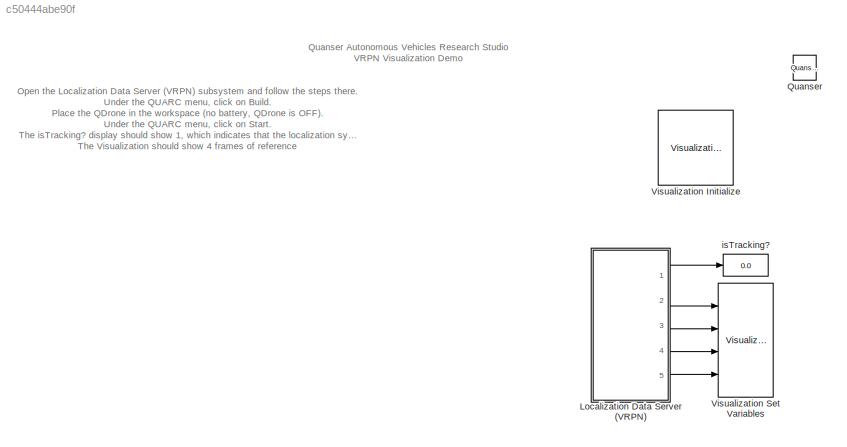
MODEL slx_c50444abe90f
KIND model
CONFIG AbsTol = auto
CONFIG EnableMultiTasking = on
CONFIG FixedStep = 0.001
CONFIG MaxStep = auto
CONFIG MinStep = auto
CONFIG RelTol = 1e-3
CONFIG SampleTimeConstraint = Unconstrained
CONFIG SolverName = FixedStepDiscrete
CONFIG StartTime = 0.0
CONFIG StopTime = inf
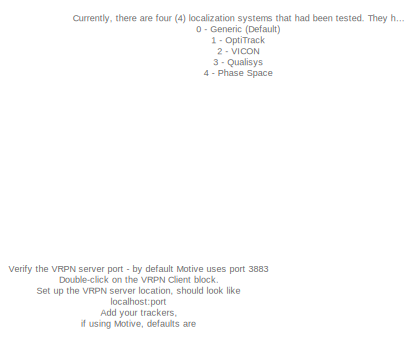
[diagram: Localization Data Server (VRPN)  - part 1/2, top left region]
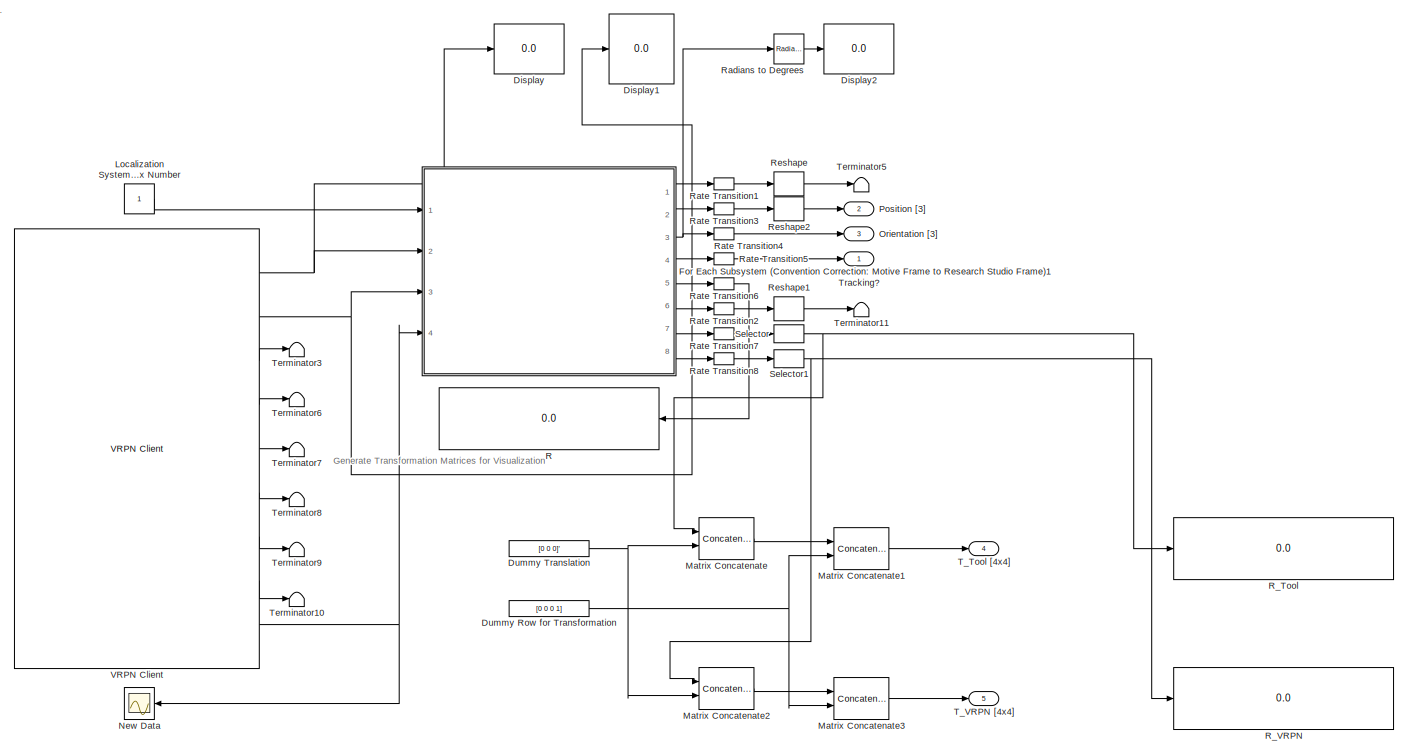
[diagram: Localization Data Server (VRPN)  - part 2/2, most of the canvas]
BLOCK [SubSystem] Localization Data Server (VRPN) 
  Ports = [0, 5]
  RequestExecContextInheritance = off
BLOCK [Display] Localization Data Server (VRPN) /Display
  Decimation = 1
  Ports = [1]
BLOCK [Display] Localization Data Server (VRPN) /Display1
  Decimation = 1
  Ports = [1]
BLOCK [Display] Localization Data Server (VRPN) /Display2
  Decimation = 1
  Ports = [1]
BLOCK [Constant] Localization Data Server (VRPN) /Dummy Row for Transformation
  Value = [0 0 0 1]
  VectorParams1D = off
BLOCK [Constant] Localization Data Server (VRPN) /Dummy Translation
  NameLocation = top
  Value = [0 0 0]'
  VectorParams1D = off
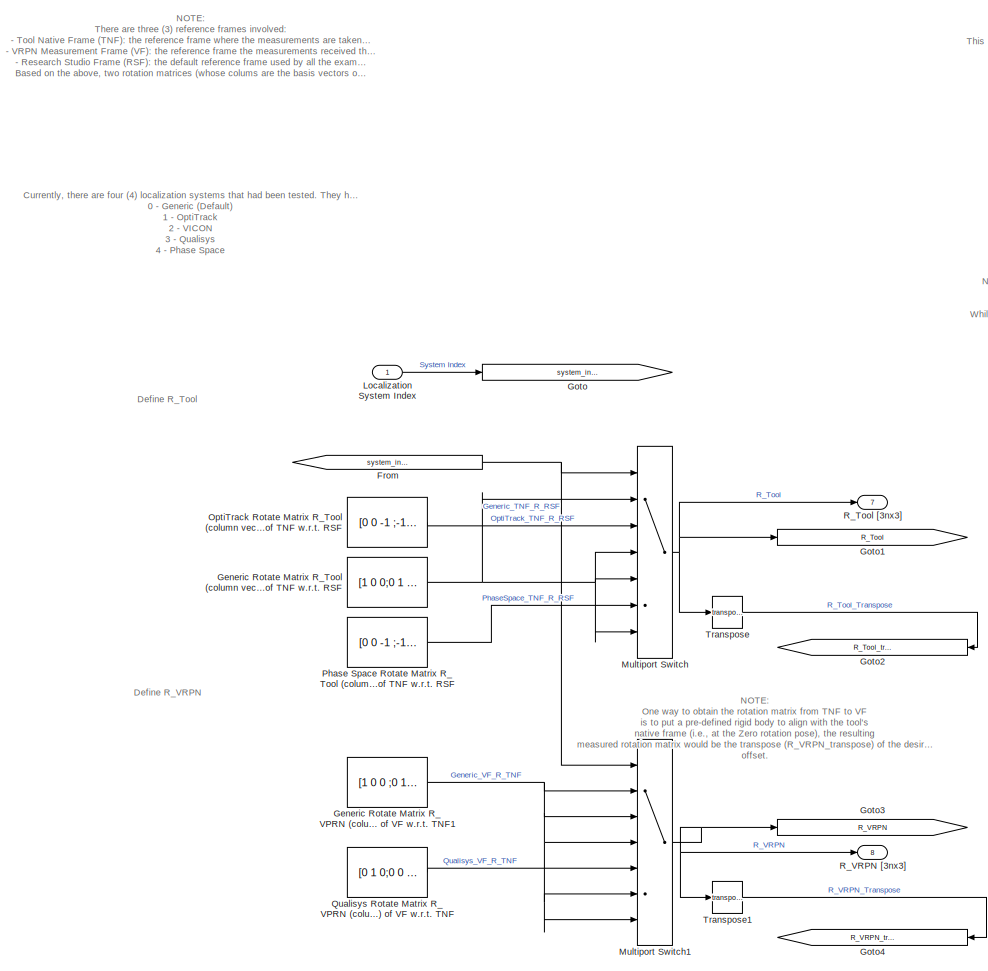
[diagram: Localization Data Server (VRPN) /For Each Subsystem (Convention Correction: Motive Frame to Research Studio Frame)1 - part 1/2, left side, full height]
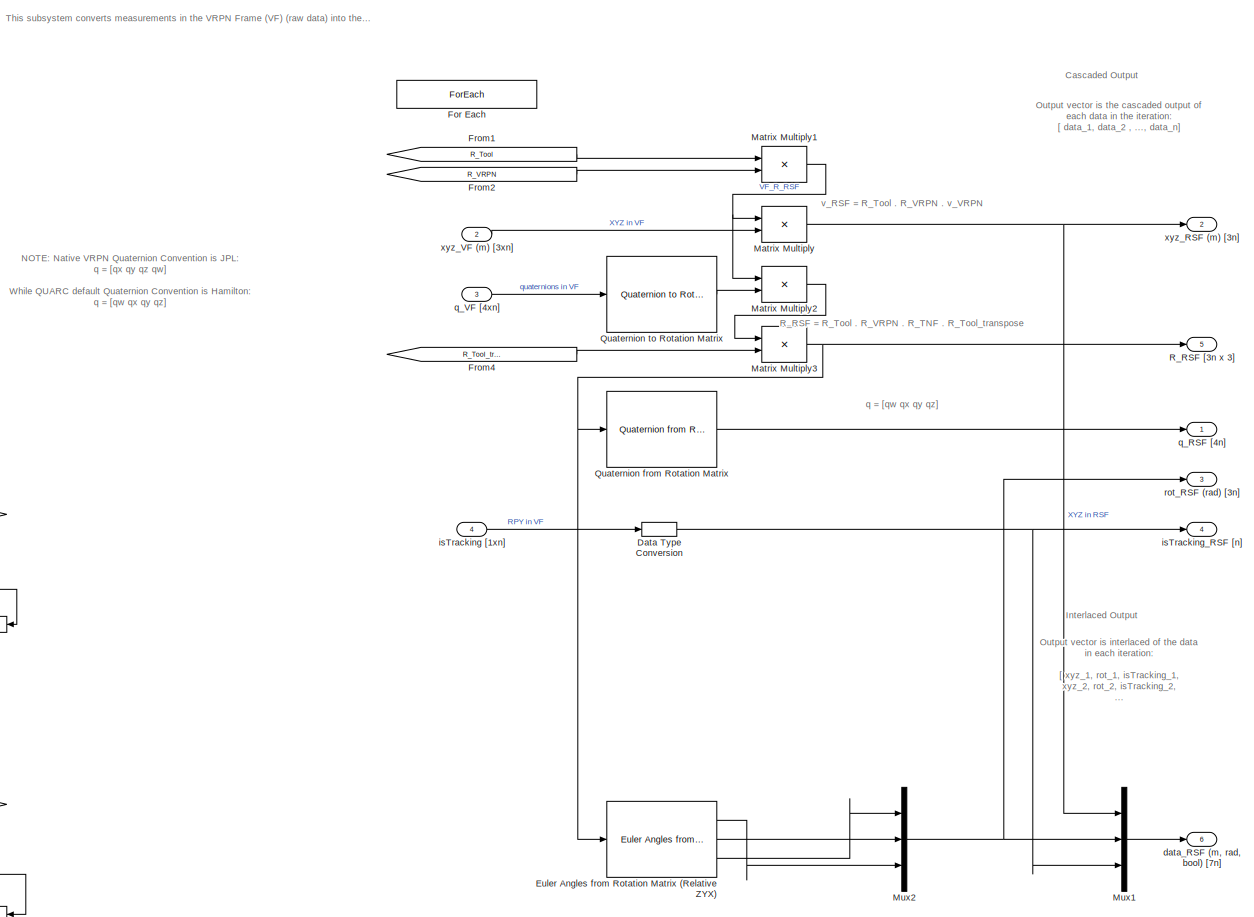
[diagram: Localization Data Server (VRPN) /For Each Subsystem (Convention Correction: Motive Frame to Research Studio Frame)1 - part 2/2, right side, full height]
BLOCK [SubSystem] Localization Data Server (VRPN) /For Each Subsystem (Convention Correction: Motive Frame to Research Studio Frame)1
  NameLocation = top
  Ports = [4, 8]
  RequestExecContextInheritance = off
  TreatAsAtomicUnit = on
BLOCK [Constant] Localization Data Server (VRPN) /For Each Subsystem (Convention Correction: Motive Frame to Research Studio Frame)1/ Generic Rotate Matrix R_VPRN (column vectors are basis vectors) of VF w.r.t. TNF1
  NameLocation = left
  Value = [1 0 0 ;0 1 0;0 0 1]
  VectorParams1D = off
BLOCK [Constant] Localization Data Server (VRPN) /For Each Subsystem (Convention Correction: Motive Frame to Research Studio Frame)1/ Qualisys Rotate Matrix R_VPRN (column vectors are basis vectors) of VF w.r.t. TNF
  NameLocation = left
  Value = [0 1 0;0 0 1;1 0 0]'
  VectorParams1D = off
BLOCK [DataTypeConversion] Localization Data Server (VRPN) /For Each Subsystem (Convention Correction: Motive Frame to Research Studio Frame)1/Data Type Conversion
  OutDataTypeStr = double
  RndMeth = Floor
  SaturateOnIntegerOverflow = off
BLOCK [Reference] Localization Data Server (VRPN) /For Each Subsystem (Convention Correction: Motive Frame to Research Studio Frame)1/Euler Angles from Rotation Matrix (Relative ZYX)  REF=quarc_library/Math Operations/Matrices/Euler Angles from
Rotation Matrix
  Ports = [1, 3]
  SourceBlock = quarc_library/Math Operations/Matrices/Euler Angles from\nRotation Matrix
  SourceProductName = QUARC Targets
  SourceType = Euler Angles from Rotation Matrix
BLOCK [ForEach] Localization Data Server (VRPN) /For Each Subsystem (Convention Correction: Motive Frame to Research Studio Frame)1/For Each
  DisableCoverage = on
  Ports = []
BLOCK [From] Localization Data Server (VRPN) /For Each Subsystem (Convention Correction: Motive Frame to Research Studio Frame)1/From
  GotoTag = system_index
BLOCK [From] Localization Data Server (VRPN) /For Each Subsystem (Convention Correction: Motive Frame to Research Studio Frame)1/From1
  GotoTag = R_Tool
BLOCK [From] Localization Data Server (VRPN) /For Each Subsystem (Convention Correction: Motive Frame to Research Studio Frame)1/From2
  GotoTag = R_VRPN
BLOCK [From] Localization Data Server (VRPN) /For Each Subsystem (Convention Correction: Motive Frame to Research Studio Frame)1/From4
  GotoTag = R_Tool_transpose
BLOCK [Constant] Localization Data Server (VRPN) /For Each Subsystem (Convention Correction: Motive Frame to Research Studio Frame)1/Generic Rotate Matrix R_Tool (column vectors are basis vectors) of TNF w.r.t. RSF
  NameLocation = left
  Value = [1 0 0;0 1 0 ;0 0 1]
  VectorParams1D = off
BLOCK [Goto] Localization Data Server (VRPN) /For Each Subsystem (Convention Correction: Motive Frame to Research Studio Frame)1/Goto
  GotoTag = system_index
BLOCK [Goto] Localization Data Server (VRPN) /For Each Subsystem (Convention Correction: Motive Frame to Research Studio Frame)1/Goto1
  GotoTag = R_Tool
BLOCK [Goto] Localization Data Server (VRPN) /For Each Subsystem (Convention Correction: Motive Frame to Research Studio Frame)1/Goto2
  GotoTag = R_Tool_transpose
BLOCK [Goto] Localization Data Server (VRPN) /For Each Subsystem (Convention Correction: Motive Frame to Research Studio Frame)1/Goto3
  GotoTag = R_VRPN
BLOCK [Goto] Localization Data Server (VRPN) /For Each Subsystem (Convention Correction: Motive Frame to Research Studio Frame)1/Goto4
  Commented = on
  GotoTag = R_VRPN_transpose
BLOCK [Inport] Localization Data Server (VRPN) /For Each Subsystem (Convention Correction: Motive Frame to Research Studio Frame)1/Localization System Index
  NameLocation = left
BLOCK [Product] Localization Data Server (VRPN) /For Each Subsystem (Convention Correction: Motive Frame to Research Studio Frame)1/Matrix Multiply
  Multiplication = Matrix(*)
  Ports = [2, 1]
BLOCK [Product] Localization Data Server (VRPN) /For Each Subsystem (Convention Correction: Motive Frame to Research Studio Frame)1/Matrix Multiply1
  Multiplication = Matrix(*)
  Ports = [2, 1]
BLOCK [Product] Localization Data Server (VRPN) /For Each Subsystem (Convention Correction: Motive Frame to Research Studio Frame)1/Matrix Multiply2
  Multiplication = Matrix(*)
  Ports = [2, 1]
BLOCK [Product] Localization Data Server (VRPN) /For Each Subsystem (Convention Correction: Motive Frame to Research Studio Frame)1/Matrix Multiply3
  Multiplication = Matrix(*)
  Ports = [2, 1]
BLOCK [MultiPortSwitch] Localization Data Server (VRPN) /For Each Subsystem (Convention Correction: Motive Frame to Research Studio Frame)1/Multiport Switch
  DataPortForDefault = Additional data port
  DataPortOrder = Zero-based contiguous
  DiagnosticForDefault = None
  InputSameDT = off
  Inputs = 5
  Ports = [7, 1]
  SaturateOnIntegerOverflow = off
  zeroidx = on
BLOCK [MultiPortSwitch] Localization Data Server (VRPN) /For Each Subsystem (Convention Correction: Motive Frame to Research Studio Frame)1/Multiport Switch1
  DataPortForDefault = Additional data port
  DataPortOrder = Zero-based contiguous
  DiagnosticForDefault = None
  InputSameDT = off
  Inputs = 5
  Ports = [7, 1]
  SaturateOnIntegerOverflow = off
  zeroidx = on
BLOCK [Mux] Localization Data Server (VRPN) /For Each Subsystem (Convention Correction: Motive Frame to Research Studio Frame)1/Mux1
  DisplayOption = bar
  Inputs = 3
  Ports = [3, 1]
BLOCK [Mux] Localization Data Server (VRPN) /For Each Subsystem (Convention Correction: Motive Frame to Research Studio Frame)1/Mux2
  DisplayOption = bar
  Inputs = 3
  Ports = [3, 1]
BLOCK [Constant] Localization Data Server (VRPN) /For Each Subsystem (Convention Correction: Motive Frame to Research Studio Frame)1/OptiTrack Rotate Matrix R_Tool (column vectors are basis vectors) of TNF w.r.t. RSF
  NameLocation = left
  Value = [0 0 -1 ;-1 0 0 ;0 1 0 ]
  VectorParams1D = off
BLOCK [Constant] Localization Data Server (VRPN) /For Each Subsystem (Convention Correction: Motive Frame to Research Studio Frame)1/Phase Space Rotate Matrix R_Tool (column vectors are basis vectors) of TNF w.r.t. RSF
  NameLocation = left
  Value = [0 0 -1 ;-1 0 0 ;0 1 0 ]
  VectorParams1D = off
BLOCK [Reference] Localization Data Server (VRPN) /For Each Subsystem (Convention Correction: Motive Frame to Research Studio Frame)1/Quaternion from Rotation Matrix  REF=quarc_library/Math Operations/Quaternions/Quaternion
from Rotation Matrix
  Ports = [1, 1]
  SourceBlock = quarc_library/Math Operations/Quaternions/Quaternion\nfrom Rotation Matrix
  SourceProductName = QUARC Targets
  SourceType = Quaternion from Rotation Matrix
BLOCK [Reference] Localization Data Server (VRPN) /For Each Subsystem (Convention Correction: Motive Frame to Research Studio Frame)1/Quaternion to Rotation Matrix  REF=quarc_library/Math Operations/Quaternions/Quaternion
to Rotation Matrix
  Ports = [1, 1]
  SourceBlock = quarc_library/Math Operations/Quaternions/Quaternion\nto Rotation Matrix
  SourceProductName = QUARC Targets
  SourceType = Quaternion to Rotation Matrix
BLOCK [Outport] Localization Data Server (VRPN) /For Each Subsystem (Convention Correction: Motive Frame to Research Studio Frame)1/R_RSF [3n x 3]
  ConcatenationDimension = 1
  NameLocation = right
  Port = 5
BLOCK [Outport] Localization Data Server (VRPN) /For Each Subsystem (Convention Correction: Motive Frame to Research Studio Frame)1/R_Tool [3nx3]
  ConcatenationDimension = 1
  NameLocation = right
  Port = 7
BLOCK [Outport] Localization Data Server (VRPN) /For Each Subsystem (Convention Correction: Motive Frame to Research Studio Frame)1/R_VRPN [3nx3]
  ConcatenationDimension = 1
  NameLocation = right
  Port = 8
BLOCK [Math] Localization Data Server (VRPN) /For Each Subsystem (Convention Correction: Motive Frame to Research Studio Frame)1/Transpose
  Operator = transpose
  Ports = [1, 1]
BLOCK [Math] Localization Data Server (VRPN) /For Each Subsystem (Convention Correction: Motive Frame to Research Studio Frame)1/Transpose1
  Operator = transpose
  Ports = [1, 1]
BLOCK [Outport] Localization Data Server (VRPN) /For Each Subsystem (Convention Correction: Motive Frame to Research Studio Frame)1/data_RSF (m, rad, bool) [7n]
  ConcatenationDimension = 1
  NameLocation = right
  Port = 6
BLOCK [Inport] Localization Data Server (VRPN) /For Each Subsystem (Convention Correction: Motive Frame to Research Studio Frame)1/isTracking [1xn]
  NameLocation = left
  Partition = on
  PartitionDimension = 2
  PartitionOffset = 0
  PartitionWidth = 1
  Port = 4
BLOCK [Outport] Localization Data Server (VRPN) /For Each Subsystem (Convention Correction: Motive Frame to Research Studio Frame)1/isTracking_RSF [n]
  ConcatenationDimension = 1
  NameLocation = right
  Port = 4
BLOCK [Outport] Localization Data Server (VRPN) /For Each Subsystem (Convention Correction: Motive Frame to Research Studio Frame)1/q_RSF [4n]
  ConcatenationDimension = 1
  NameLocation = right
BLOCK [Inport] Localization Data Server (VRPN) /For Each Subsystem (Convention Correction: Motive Frame to Research Studio Frame)1/q_VF [4xn]
  NameLocation = left
  Partition = on
  PartitionDimension = 2
  PartitionOffset = 0
  PartitionWidth = 1
  Port = 3
BLOCK [Outport] Localization Data Server (VRPN) /For Each Subsystem (Convention Correction: Motive Frame to Research Studio Frame)1/rot_RSF (rad) [3n]
  ConcatenationDimension = 1
  NameLocation = right
  Port = 3
BLOCK [Outport] Localization Data Server (VRPN) /For Each Subsystem (Convention Correction: Motive Frame to Research Studio Frame)1/xyz_RSF (m) [3n]
  ConcatenationDimension = 1
  NameLocation = right
  Port = 2
BLOCK [Inport] Localization Data Server (VRPN) /For Each Subsystem (Convention Correction: Motive Frame to Research Studio Frame)1/xyz_VF (m) [3xn]
  NameLocation = left
  Partition = on
  PartitionDimension = 2
  PartitionOffset = 0
  PartitionWidth = 1
  Port = 2
BLOCK [Constant] Localization Data Server (VRPN) /Localization System Index Number
  NameLocation = left
BLOCK [Concatenate] Localization Data Server (VRPN) /Matrix Concatenate
  ConcatenateDimension = 2
  Mode = Multidimensional array
  Ports = [2, 1]
BLOCK [Concatenate] Localization Data Server (VRPN) /Matrix Concatenate1
  Mode = Multidimensional array
  Ports = [2, 1]
BLOCK [Concatenate] Localization Data Server (VRPN) /Matrix Concatenate2
  ConcatenateDimension = 2
  Mode = Multidimensional array
  Ports = [2, 1]
BLOCK [Concatenate] Localization Data Server (VRPN) /Matrix Concatenate3
  Mode = Multidimensional array
  Ports = [2, 1]
BLOCK [Scope] Localization Data Server (VRPN) /New Data
  Floating = off
  NumInputPorts = 1
  Ports = [1]
  ScopeSpecificationString = Simulink.scopes.TimeScopeBlockCfg('CurrentConfiguration', extmgr.ConfigurationSet(extmgr.Configuration('Core','General UI',true),extmgr.Configuration('Core','Source UI',true),extmgr.Configuration('Sources','WiredSimulink',true),extmgr.Configuration('Visuals','Time Domain',true),extmgr.Configuration('Tools','Plot Navigation',true),extmgr.Configuration('Tools','Measurements',true)),'Version','2023a'...<+1ch>
BLOCK [Outport] Localization Data Server (VRPN) /Orientation [3]
  NameLocation = right
  Port = 3
  VectorParamsAs1DForOutWhenUnconnected = off
BLOCK [Outport] Localization Data Server (VRPN) /Position [3]
  NameLocation = right
  Port = 2
  VectorParamsAs1DForOutWhenUnconnected = off
BLOCK [Display] Localization Data Server (VRPN) /R
  Decimation = 1
  NameLocation = left
  Ports = [1]
BLOCK [Display] Localization Data Server (VRPN) /R_Tool
  Decimation = 1
  Ports = [1]
BLOCK [Display] Localization Data Server (VRPN) /R_VRPN
  Decimation = 1
  Ports = [1]
BLOCK [Reference] Localization Data Server (VRPN) /Radians to Degrees  REF=simulink_extras/Transformations/Radians
to Degrees
  Ports = [1, 1]
  SourceBlock = simulink_extras/Transformations/Radians\nto Degrees
  SourceProductBaseCode = SL
  SourceType = RadiansToDegrees
BLOCK [RateTransition] Localization Data Server (VRPN) /Rate Transition1
BLOCK [RateTransition] Localization Data Server (VRPN) /Rate Transition2
BLOCK [RateTransition] Localization Data Server (VRPN) /Rate Transition3
BLOCK [RateTransition] Localization Data Server (VRPN) /Rate Transition4
BLOCK [RateTransition] Localization Data Server (VRPN) /Rate Transition5
BLOCK [RateTransition] Localization Data Server (VRPN) /Rate Transition6
BLOCK [RateTransition] Localization Data Server (VRPN) /Rate Transition7
BLOCK [RateTransition] Localization Data Server (VRPN) /Rate Transition8
BLOCK [Reshape] Localization Data Server (VRPN) /Reshape
  Ports = [1, 1]
BLOCK [Reshape] Localization Data Server (VRPN) /Reshape1
  Ports = [1, 1]
BLOCK [Reshape] Localization Data Server (VRPN) /Reshape2
  Ports = [1, 1]
BLOCK [Selector] Localization Data Server (VRPN) /Selector
  IndexOptions = Index vector (dialog),Index vector (dialog)
  Indices = [1:3],[1:3]
  InputPortWidth = 3
  NumberOfDimensions = 2
  OutputSizes = 1,1
  Ports = [1, 1]
BLOCK [Selector] Localization Data Server (VRPN) /Selector1
  IndexOptions = Index vector (dialog),Index vector (dialog)
  Indices = [1:3],[1:3]
  InputPortWidth = 3
  NumberOfDimensions = 2
  OutputSizes = 1,1
  Ports = [1, 1]
BLOCK [Outport] Localization Data Server (VRPN) /T_Tool [4x4]
  NameLocation = right
  Port = 4
  VectorParamsAs1DForOutWhenUnconnected = off
BLOCK [Outport] Localization Data Server (VRPN) /T_VRPN [4x4]
  NameLocation = right
  Port = 5
  VectorParamsAs1DForOutWhenUnconnected = off
BLOCK [Terminator] Localization Data Server (VRPN) /Terminator10
BLOCK [Terminator] Localization Data Server (VRPN) /Terminator11
BLOCK [Terminator] Localization Data Server (VRPN) /Terminator3
BLOCK [Terminator] Localization Data Server (VRPN) /Terminator5
BLOCK [Terminator] Localization Data Server (VRPN) /Terminator6
BLOCK [Terminator] Localization Data Server (VRPN) /Terminator7
BLOCK [Terminator] Localization Data Server (VRPN) /Terminator8
BLOCK [Terminator] Localization Data Server (VRPN) /Terminator9
BLOCK [Outport] Localization Data Server (VRPN) /Tracking?
  NameLocation = right
  VectorParamsAs1DForOutWhenUnconnected = off
BLOCK [Reference] Localization Data Server (VRPN) /VRPN Client  REF=quarc_library/Devices/Third-Party/VRPN/VRPN Client
  Ports = [0, 9]
  SourceBlock = quarc_library/Devices/Third-Party/VRPN/VRPN Client
  SourceProductName = QUARC Targets
  SourceType = VRPN Client
BLOCK [Reference] Quanser  REF=quarc_library/Logos/Quanser
  Ports = []
  SourceBlock = quarc_library/Logos/Quanser
  SourceProductName = QUARC Targets
  SourceType = Powered by Quanser
BLOCK [Reference] Visualization Initialize  REF=quarc_library/User Interface/Visualization/Visualization Initialize
  AttributesFormatString = %<object_name>
  Ports = []
  SourceBlock = quarc_library/User Interface/Visualization/Visualization Initialize
  SourceProductName = QUARC Targets
  SourceType = Visualization Initialize
BLOCK [Reference] Visualization Set Variables  REF=quarc_library/User Interface/Visualization/Visualization Set Variables
  AttributesFormatString = (%<object_name>)
  Ports = [4]
  SourceBlock = quarc_library/User Interface/Visualization/Visualization Set Variables
  SourceProductName = QUARC Targets
  SourceType = Visualization Set Variables
BLOCK [Display] isTracking?
  Decimation = 1
  NameLocation = top
  Ports = [1]
ANNOTATION (root): Open the Localization Data Server (VRPN) subsystem and follow the steps there. Under the QUARC menu, click on Build. Place the QDrone in the workspace (no battery, QDrone is OFF). Under the QUARC menu, click on Start . The isTracking? display should show 1, which indicates that the localization system is tracking the vehicle's pose. The Visualization should show 4 frames of reference a. BLACK - It...<+1675ch>
ANNOTATION (root): Quanser Autonomous Vehicles Research Studio VRPN Visualization Demo
ANNOTATION Localization Data Server (VRPN) : Verify the VRPN server port - by default Motive uses port 3883 Double-click on the VRPN Client block. Set up the VRPN server location, should look like localhost:port Add your trackers, if using Motive, defaults are Tracker Device: RigidBody Number of sensors: 1 Sensors to read: 0 Leave the rest of the setting as is.
ANNOTATION Localization Data Server (VRPN) : Currently, there are four (4) localization systems that had been tested. They have been assigned an index number for selection (together with a generic/default system that has no transformation required, i.e., measurements frame aligned with RSF): 0 - Generic (Default) 1 - OptiTrack 2 - VICON 3 - Qualisys 4 - Phase Space Follow the procedured described in this model to add support for additional s...<+56ch>
ANNOTATION Localization Data Server (VRPN) : Generate Transformation Matrices for Visualization
ANNOTATION Localization Data Server (VRPN) /For Each Subsystem (Convention Correction: Motive Frame to Research Studio Frame)1: Currently, there are four (4) localization systems that had been tested. They have been assigned an index number for selection (together with a generic/default system that has no transformation required, i.e., measurements frame aligned with RSF): 0 - Generic (Default) 1 - OptiTrack 2 - VICON 3 - Qualisys 4 - Phase Space Follow the procedured described in this model to add support for additional s...<+56ch>
ANNOTATION Localization Data Server (VRPN) /For Each Subsystem (Convention Correction: Motive Frame to Research Studio Frame)1: NOTE: There are three (3) reference frames involved: - Tool Native Frame (TNF) : the reference frame where the measurements are taken with respect to within the localization tool - VRPN Measurement Frame (VF) : the reference frame the measurements received through the VRPN protocol are taken with respect to - Research Studio Frame (RSF) : the default reference frame used by all the example models ...<+405ch>
ANNOTATION Localization Data Server (VRPN) /For Each Subsystem (Convention Correction: Motive Frame to Research Studio Frame)1: This subsystem converts measurements in the VRPN Frame (VF) (raw data) into the Research Studio Frame (RSF).
ANNOTATION Localization Data Server (VRPN) /For Each Subsystem (Convention Correction: Motive Frame to Research Studio Frame)1: Cascaded Output
ANNOTATION Localization Data Server (VRPN) /For Each Subsystem (Convention Correction: Motive Frame to Research Studio Frame)1: Define R_Tool
ANNOTATION Localization Data Server (VRPN) /For Each Subsystem (Convention Correction: Motive Frame to Research Studio Frame)1: Define R_VRPN
ANNOTATION Localization Data Server (VRPN) /For Each Subsystem (Convention Correction: Motive Frame to Research Studio Frame)1: Interlaced Output
ANNOTATION Localization Data Server (VRPN) /For Each Subsystem (Convention Correction: Motive Frame to Research Studio Frame)1: NOTE: One way to obtain the rotation matrix from TNF to VF is to put a pre-defined rigid body to align with the tool's native frame (i.e., at the Zero rotation pose), the resulting measured rotation matrix would be the transpose (R_VRPN_transpose) of the desired rotation offset.
ANNOTATION Localization Data Server (VRPN) /For Each Subsystem (Convention Correction: Motive Frame to Research Studio Frame)1: NOTE: Native VRPN Quaternion Convention is JPL: q = [qx qy qz qw] While QUARC default Quaternion Convention is Hamilton: q = [qw qx qy qz]
ANNOTATION Localization Data Server (VRPN) /For Each Subsystem (Convention Correction: Motive Frame to Research Studio Frame)1: Output vector is interlaced of the data in each iteration: [ xyz_1, rot_1, isTracking_1, xyz_2, rot_2, isTracking_2, ... xyz_n, rot_n, isTracking_n ]
ANNOTATION Localization Data Server (VRPN) /For Each Subsystem (Convention Correction: Motive Frame to Research Studio Frame)1: Output vector is the cascaded output of each data in the iteration: [ data_1, data_2 , ..., data_n]
ANNOTATION Localization Data Server (VRPN) /For Each Subsystem (Convention Correction: Motive Frame to Research Studio Frame)1: R_RSF = R_Tool . R_VRPN . R_TNF . R_Tool_transpose
ANNOTATION Localization Data Server (VRPN) /For Each Subsystem (Convention Correction: Motive Frame to Research Studio Frame)1: q = [qw qx qy qz]
ANNOTATION Localization Data Server (VRPN) /For Each Subsystem (Convention Correction: Motive Frame to Research Studio Frame)1: v_RSF = R_Tool . R_VRPN . v_VRPN
NET Localization Data Server (VRPN) /Dummy Row for Transformation:1 -> Localization Data Server (VRPN) /Matrix Concatenate1:2, Localization Data Server (VRPN) /Matrix Concatenate3:2
NET Localization Data Server (VRPN) /Dummy Translation:1 -> Localization Data Server (VRPN) /Matrix Concatenate2:2, Localization Data Server (VRPN) /Matrix Concatenate:2
NET Localization Data Server (VRPN) /For Each Subsystem (Convention Correction: Motive Frame to Research Studio Frame)1/ Generic Rotate Matrix R_VPRN (column vectors are basis vectors) of VF w.r.t. TNF1:1 -> Localization Data Server (VRPN) /For Each Subsystem (Convention Correction: Motive Frame to Research Studio Frame)1/Multiport Switch1:2, Localization Data Server (VRPN) /For Each Subsystem (Convention Correction: Motive Frame to Research Studio Frame)1/Multiport Switch1:3, Localization Data Server (VRPN) /For Each Subsystem (Convention Correction: Motive Frame to Research Studio Frame)1/Multiport Switch1:4, Localization Data Server (VRPN) /For Each Subsystem (Convention Correction: Motive Frame to Research Studio Frame)1/Multiport Switch1:6, Localization Data Server (VRPN) /For Each Subsystem (Convention Correction: Motive Frame to Research Studio Frame)1/Multiport Switch1:7
LINE Localization Data Server (VRPN) /For Each Subsystem (Convention Correction: Motive Frame to Research Studio Frame)1/ Qualisys Rotate Matrix R_VPRN (column vectors are basis vectors) of VF w.r.t. TNF:1 -> Localization Data Server (VRPN) /For Each Subsystem (Convention Correction: Motive Frame to Research Studio Frame)1/Multiport Switch1:5
NET Localization Data Server (VRPN) /For Each Subsystem (Convention Correction: Motive Frame to Research Studio Frame)1/Data Type Conversion:1 -> Localization Data Server (VRPN) /For Each Subsystem (Convention Correction: Motive Frame to Research Studio Frame)1/Mux1:3, Localization Data Server (VRPN) /For Each Subsystem (Convention Correction: Motive Frame to Research Studio Frame)1/isTracking_RSF [n]:1
LINE Localization Data Server (VRPN) /For Each Subsystem (Convention Correction: Motive Frame to Research Studio Frame)1/Euler Angles from Rotation Matrix (Relative ZYX):1 -> Localization Data Server (VRPN) /For Each Subsystem (Convention Correction: Motive Frame to Research Studio Frame)1/Mux2:3
LINE Localization Data Server (VRPN) /For Each Subsystem (Convention Correction: Motive Frame to Research Studio Frame)1/Euler Angles from Rotation Matrix (Relative ZYX):2 -> Localization Data Server (VRPN) /For Each Subsystem (Convention Correction: Motive Frame to Research Studio Frame)1/Mux2:2
LINE Localization Data Server (VRPN) /For Each Subsystem (Convention Correction: Motive Frame to Research Studio Frame)1/Euler Angles from Rotation Matrix (Relative ZYX):3 -> Localization Data Server (VRPN) /For Each Subsystem (Convention Correction: Motive Frame to Research Studio Frame)1/Mux2:1
LINE Localization Data Server (VRPN) /For Each Subsystem (Convention Correction: Motive Frame to Research Studio Frame)1/From1:1 -> Localization Data Server (VRPN) /For Each Subsystem (Convention Correction: Motive Frame to Research Studio Frame)1/Matrix Multiply1:1
LINE Localization Data Server (VRPN) /For Each Subsystem (Convention Correction: Motive Frame to Research Studio Frame)1/From2:1 -> Localization Data Server (VRPN) /For Each Subsystem (Convention Correction: Motive Frame to Research Studio Frame)1/Matrix Multiply1:2
LINE Localization Data Server (VRPN) /For Each Subsystem (Convention Correction: Motive Frame to Research Studio Frame)1/From4:1 -> Localization Data Server (VRPN) /For Each Subsystem (Convention Correction: Motive Frame to Research Studio Frame)1/Matrix Multiply3:2
NET Localization Data Server (VRPN) /For Each Subsystem (Convention Correction: Motive Frame to Research Studio Frame)1/From:1 -> Localization Data Server (VRPN) /For Each Subsystem (Convention Correction: Motive Frame to Research Studio Frame)1/Multiport Switch1:1, Localization Data Server (VRPN) /For Each Subsystem (Convention Correction: Motive Frame to Research Studio Frame)1/Multiport Switch:1
NET Localization Data Server (VRPN) /For Each Subsystem (Convention Correction: Motive Frame to Research Studio Frame)1/Generic Rotate Matrix R_Tool (column vectors are basis vectors) of TNF w.r.t. RSF:1 -> Localization Data Server (VRPN) /For Each Subsystem (Convention Correction: Motive Frame to Research Studio Frame)1/Multiport Switch:2, Localization Data Server (VRPN) /For Each Subsystem (Convention Correction: Motive Frame to Research Studio Frame)1/Multiport Switch:4, Localization Data Server (VRPN) /For Each Subsystem (Convention Correction: Motive Frame to Research Studio Frame)1/Multiport Switch:5, Localization Data Server (VRPN) /For Each Subsystem (Convention Correction: Motive Frame to Research Studio Frame)1/Multiport Switch:7
LINE Localization Data Server (VRPN) /For Each Subsystem (Convention Correction: Motive Frame to Research Studio Frame)1/Localization System Index:1 -> Localization Data Server (VRPN) /For Each Subsystem (Convention Correction: Motive Frame to Research Studio Frame)1/Goto:1
NET Localization Data Server (VRPN) /For Each Subsystem (Convention Correction: Motive Frame to Research Studio Frame)1/Matrix Multiply1:1 -> Localization Data Server (VRPN) /For Each Subsystem (Convention Correction: Motive Frame to Research Studio Frame)1/Matrix Multiply2:1, Localization Data Server (VRPN) /For Each Subsystem (Convention Correction: Motive Frame to Research Studio Frame)1/Matrix Multiply:1
LINE Localization Data Server (VRPN) /For Each Subsystem (Convention Correction: Motive Frame to Research Studio Frame)1/Matrix Multiply2:1 -> Localization Data Server (VRPN) /For Each Subsystem (Convention Correction: Motive Frame to Research Studio Frame)1/Matrix Multiply3:1
NET Localization Data Server (VRPN) /For Each Subsystem (Convention Correction: Motive Frame to Research Studio Frame)1/Matrix Multiply3:1 -> Localization Data Server (VRPN) /For Each Subsystem (Convention Correction: Motive Frame to Research Studio Frame)1/Euler Angles from Rotation Matrix (Relative ZYX):1, Localization Data Server (VRPN) /For Each Subsystem (Convention Correction: Motive Frame to Research Studio Frame)1/Quaternion from Rotation Matrix:1, Localization Data Server (VRPN) /For Each Subsystem (Convention Correction: Motive Frame to Research Studio Frame)1/R_RSF [3n x 3]:1
NET Localization Data Server (VRPN) /For Each Subsystem (Convention Correction: Motive Frame to Research Studio Frame)1/Matrix Multiply:1 -> Localization Data Server (VRPN) /For Each Subsystem (Convention Correction: Motive Frame to Research Studio Frame)1/Mux1:1, Localization Data Server (VRPN) /For Each Subsystem (Convention Correction: Motive Frame to Research Studio Frame)1/xyz_RSF (m) [3n]:1
NET Localization Data Server (VRPN) /For Each Subsystem (Convention Correction: Motive Frame to Research Studio Frame)1/Multiport Switch1:1 -> Localization Data Server (VRPN) /For Each Subsystem (Convention Correction: Motive Frame to Research Studio Frame)1/Goto3:1, Localization Data Server (VRPN) /For Each Subsystem (Convention Correction: Motive Frame to Research Studio Frame)1/R_VRPN [3nx3]:1, Localization Data Server (VRPN) /For Each Subsystem (Convention Correction: Motive Frame to Research Studio Frame)1/Transpose1:1
NET Localization Data Server (VRPN) /For Each Subsystem (Convention Correction: Motive Frame to Research Studio Frame)1/Multiport Switch:1 -> Localization Data Server (VRPN) /For Each Subsystem (Convention Correction: Motive Frame to Research Studio Frame)1/Goto1:1, Localization Data Server (VRPN) /For Each Subsystem (Convention Correction: Motive Frame to Research Studio Frame)1/R_Tool [3nx3]:1, Localization Data Server (VRPN) /For Each Subsystem (Convention Correction: Motive Frame to Research Studio Frame)1/Transpose:1
LINE Localization Data Server (VRPN) /For Each Subsystem (Convention Correction: Motive Frame to Research Studio Frame)1/Mux1:1 -> Localization Data Server (VRPN) /For Each Subsystem (Convention Correction: Motive Frame to Research Studio Frame)1/data_RSF (m, rad, bool) [7n]:1
NET Localization Data Server (VRPN) /For Each Subsystem (Convention Correction: Motive Frame to Research Studio Frame)1/Mux2:1 -> Localization Data Server (VRPN) /For Each Subsystem (Convention Correction: Motive Frame to Research Studio Frame)1/Mux1:2, Localization Data Server (VRPN) /For Each Subsystem (Convention Correction: Motive Frame to Research Studio Frame)1/rot_RSF (rad) [3n]:1
LINE Localization Data Server (VRPN) /For Each Subsystem (Convention Correction: Motive Frame to Research Studio Frame)1/OptiTrack Rotate Matrix R_Tool (column vectors are basis vectors) of TNF w.r.t. RSF:1 -> Localization Data Server (VRPN) /For Each Subsystem (Convention Correction: Motive Frame to Research Studio Frame)1/Multiport Switch:3
LINE Localization Data Server (VRPN) /For Each Subsystem (Convention Correction: Motive Frame to Research Studio Frame)1/Phase Space Rotate Matrix R_Tool (column vectors are basis vectors) of TNF w.r.t. RSF:1 -> Localization Data Server (VRPN) /For Each Subsystem (Convention Correction: Motive Frame to Research Studio Frame)1/Multiport Switch:6
LINE Localization Data Server (VRPN) /For Each Subsystem (Convention Correction: Motive Frame to Research Studio Frame)1/Quaternion from Rotation Matrix:1 -> Localization Data Server (VRPN) /For Each Subsystem (Convention Correction: Motive Frame to Research Studio Frame)1/q_RSF [4n]:1
LINE Localization Data Server (VRPN) /For Each Subsystem (Convention Correction: Motive Frame to Research Studio Frame)1/Quaternion to Rotation Matrix:1 -> Localization Data Server (VRPN) /For Each Subsystem (Convention Correction: Motive Frame to Research Studio Frame)1/Matrix Multiply2:2
LINE Localization Data Server (VRPN) /For Each Subsystem (Convention Correction: Motive Frame to Research Studio Frame)1/Transpose1:1 -> Localization Data Server (VRPN) /For Each Subsystem (Convention Correction: Motive Frame to Research Studio Frame)1/Goto4:1
LINE Localization Data Server (VRPN) /For Each Subsystem (Convention Correction: Motive Frame to Research Studio Frame)1/Transpose:1 -> Localization Data Server (VRPN) /For Each Subsystem (Convention Correction: Motive Frame to Research Studio Frame)1/Goto2:1
LINE Localization Data Server (VRPN) /For Each Subsystem (Convention Correction: Motive Frame to Research Studio Frame)1/isTracking [1xn]:1 -> Localization Data Server (VRPN) /For Each Subsystem (Convention Correction: Motive Frame to Research Studio Frame)1/Data Type Conversion:1
LINE Localization Data Server (VRPN) /For Each Subsystem (Convention Correction: Motive Frame to Research Studio Frame)1/q_VF [4xn]:1 -> Localization Data Server (VRPN) /For Each Subsystem (Convention Correction: Motive Frame to Research Studio Frame)1/Quaternion to Rotation Matrix:1
LINE Localization Data Server (VRPN) /For Each Subsystem (Convention Correction: Motive Frame to Research Studio Frame)1/xyz_VF (m) [3xn]:1 -> Localization Data Server (VRPN) /For Each Subsystem (Convention Correction: Motive Frame to Research Studio Frame)1/Matrix Multiply:2
LINE Localization Data Server (VRPN) /For Each Subsystem (Convention Correction: Motive Frame to Research Studio Frame)1:1 -> Localization Data Server (VRPN) /Rate Transition1:1
LINE Localization Data Server (VRPN) /For Each Subsystem (Convention Correction: Motive Frame to Research Studio Frame)1:2 -> Localization Data Server (VRPN) /Rate Transition3:1
NET Localization Data Server (VRPN) /For Each Subsystem (Convention Correction: Motive Frame to Research Studio Frame)1:3 -> Localization Data Server (VRPN) /Radians to Degrees:1, Localization Data Server (VRPN) /Rate Transition4:1
LINE Localization Data Server (VRPN) /For Each Subsystem (Convention Correction: Motive Frame to Research Studio Frame)1:4 -> Localization Data Server (VRPN) /Rate Transition5:1
LINE Localization Data Server (VRPN) /For Each Subsystem (Convention Correction: Motive Frame to Research Studio Frame)1:5 -> Localization Data Server (VRPN) /Rate Transition6:1
LINE Localization Data Server (VRPN) /For Each Subsystem (Convention Correction: Motive Frame to Research Studio Frame)1:6 -> Localization Data Server (VRPN) /Rate Transition2:1
LINE Localization Data Server (VRPN) /For Each Subsystem (Convention Correction: Motive Frame to Research Studio Frame)1:7 -> Localization Data Server (VRPN) /Rate Transition7:1
LINE Localization Data Server (VRPN) /For Each Subsystem (Convention Correction: Motive Frame to Research Studio Frame)1:8 -> Localization Data Server (VRPN) /Rate Transition8:1
LINE Localization Data Server (VRPN) /Localization System Index Number:1 -> Localization Data Server (VRPN) /For Each Subsystem (Convention Correction: Motive Frame to Research Studio Frame)1:1
LINE Localization Data Server (VRPN) /Matrix Concatenate1:1 -> Localization Data Server (VRPN) /T_Tool [4x4]:1
LINE Localization Data Server (VRPN) /Matrix Concatenate2:1 -> Localization Data Server (VRPN) /Matrix Concatenate3:1
LINE Localization Data Server (VRPN) /Matrix Concatenate3:1 -> Localization Data Server (VRPN) /T_VRPN [4x4]:1
LINE Localization Data Server (VRPN) /Matrix Concatenate:1 -> Localization Data Server (VRPN) /Matrix Concatenate1:1
LINE Localization Data Server (VRPN) /Radians to Degrees:1 -> Localization Data Server (VRPN) /Display2:1
LINE Localization Data Server (VRPN) /Rate Transition1:1 -> Localization Data Server (VRPN) /Reshape:1
LINE Localization Data Server (VRPN) /Rate Transition2:1 -> Localization Data Server (VRPN) /Reshape1:1
LINE Localization Data Server (VRPN) /Rate Transition3:1 -> Localization Data Server (VRPN) /Reshape2:1
LINE Localization Data Server (VRPN) /Rate Transition4:1 -> Localization Data Server (VRPN) /Orientation [3]:1
LINE Localization Data Server (VRPN) /Rate Transition5:1 -> Localization Data Server (VRPN) /Tracking?:1
LINE Localization Data Server (VRPN) /Rate Transition6:1 -> Localization Data Server (VRPN) /R:1
LINE Localization Data Server (VRPN) /Rate Transition7:1 -> Localization Data Server (VRPN) /Selector:1
LINE Localization Data Server (VRPN) /Rate Transition8:1 -> Localization Data Server (VRPN) /Selector1:1
LINE Localization Data Server (VRPN) /Reshape1:1 -> Localization Data Server (VRPN) /Terminator11:1
LINE Localization Data Server (VRPN) /Reshape2:1 -> Localization Data Server (VRPN) /Position [3]:1
LINE Localization Data Server (VRPN) /Reshape:1 -> Localization Data Server (VRPN) /Terminator5:1
NET Localization Data Server (VRPN) /Selector1:1 -> Localization Data Server (VRPN) /Matrix Concatenate2:1, Localization Data Server (VRPN) /R_VRPN:1
NET Localization Data Server (VRPN) /Selector:1 -> Localization Data Server (VRPN) /Matrix Concatenate:1, Localization Data Server (VRPN) /R_Tool:1
NET Localization Data Server (VRPN) /VRPN Client:1 -> Localization Data Server (VRPN) /Display:1, Localization Data Server (VRPN) /For Each Subsystem (Convention Correction: Motive Frame to Research Studio Frame)1:2
NET Localization Data Server (VRPN) /VRPN Client:2 -> Localization Data Server (VRPN) /Display1:1, Localization Data Server (VRPN) /For Each Subsystem (Convention Correction: Motive Frame to Research Studio Frame)1:3
LINE Localization Data Server (VRPN) /VRPN Client:3 -> Localization Data Server (VRPN) /Terminator3:1
LINE Localization Data Server (VRPN) /VRPN Client:4 -> Localization Data Server (VRPN) /Terminator6:1
LINE Localization Data Server (VRPN) /VRPN Client:5 -> Localization Data Server (VRPN) /Terminator7:1
LINE Localization Data Server (VRPN) /VRPN Client:6 -> Localization Data Server (VRPN) /Terminator8:1
LINE Localization Data Server (VRPN) /VRPN Client:7 -> Localization Data Server (VRPN) /Terminator9:1
LINE Localization Data Server (VRPN) /VRPN Client:8 -> Localization Data Server (VRPN) /Terminator10:1
NET Localization Data Server (VRPN) /VRPN Client:9 -> Localization Data Server (VRPN) /For Each Subsystem (Convention Correction: Motive Frame to Research Studio Frame)1:4, Localization Data Server (VRPN) /New Data:1
LINE Localization Data Server (VRPN) :1 -> isTracking?:1
LINE Localization Data Server (VRPN) :2 -> Visualization Set Variables:1
LINE Localization Data Server (VRPN) :3 -> Visualization Set Variables:2
LINE Localization Data Server (VRPN) :4 -> Visualization Set Variables:3
LINE Localization Data Server (VRPN) :5 -> Visualization Set Variables:4
note: NET lines group one-source signal fan-out (src -> all destinations, sorted); 1:1 wires keep LINE
